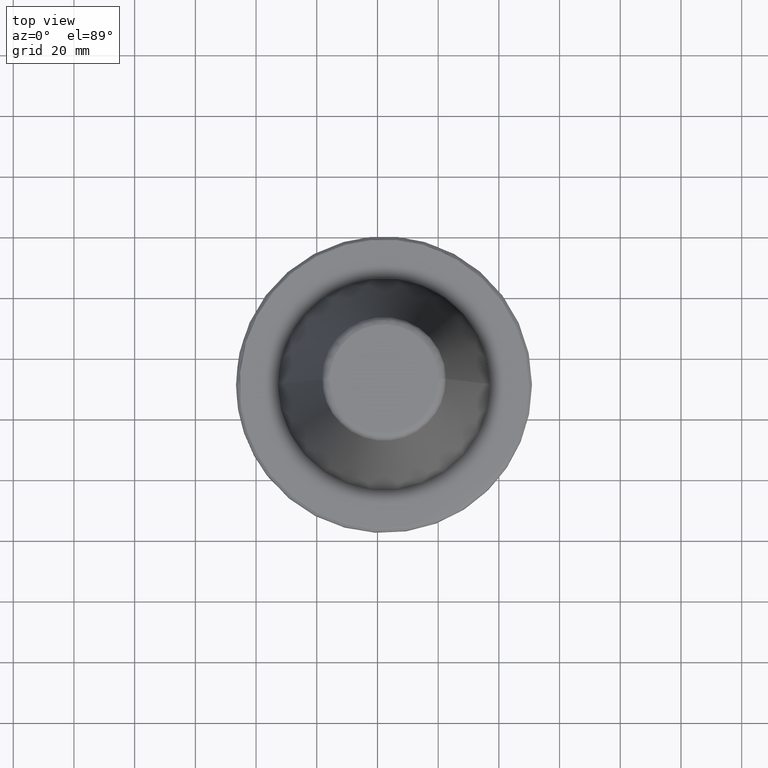
[diagram: clean part render]
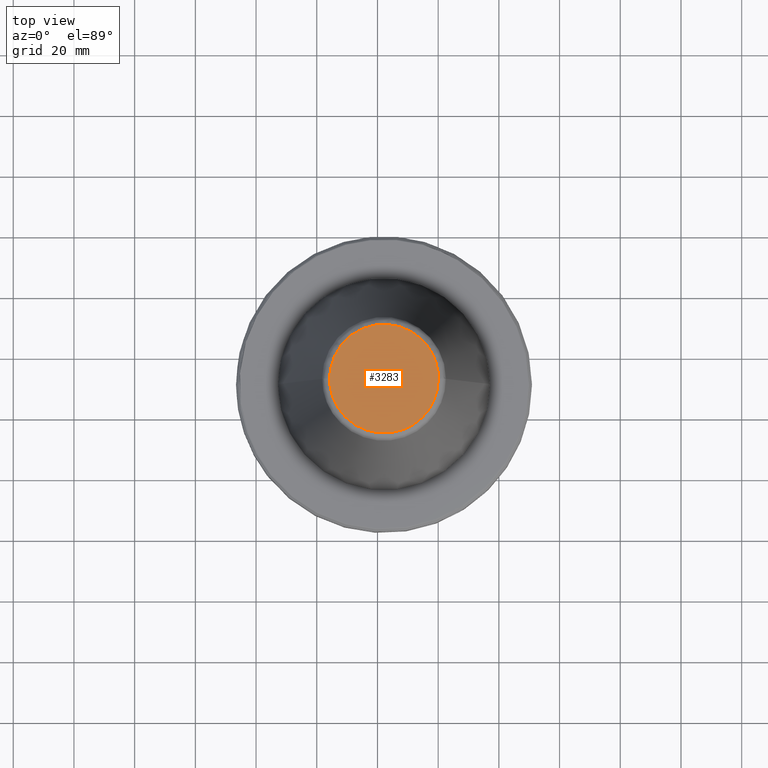
[diagram: same view with one face highlighted and labeled with its STEP entity id]
A machine part, top view. The second image highlights one B-rep face of the part: STEP entity #3283.
In plain terms, the highlighted planar face has unit normal (0, 0, 1).
Its self-contained STEP definition (entity closure, byte-faithful):
#28 = CARTESIAN_POINT ( 'NONE',  ( 104.0133589179459900, 171.9512151418019800, 325.5502788091370700 ) ) ;
#46 = DIRECTION ( 'NONE',  ( 1.000000000000000000, 0.0000000000000000000, -0.0000000000000000000 ) ) ;
#390 = CARTESIAN_POINT ( 'NONE',  ( 134.8274967219723000, 177.4162020947758300, 325.5502788091370700 ) ) ;
#402 =( BOUNDED_CURVE ( )  B_SPLINE_CURVE ( 3, ( #3173, #2804, #3352, #1025 ),
 .UNSPECIFIED., .F., .F. ) 
 B_SPLINE_CURVE_WITH_KNOTS ( ( 4, 4 ),
 ( 0.0000000000000000000, 1.000000000000000000 ),
 .UNSPECIFIED. ) 
 CURVE ( )  GEOMETRIC_REPRESENTATION_ITEM ( )  RATIONAL_B_SPLINE_CURVE ( ( 0.9999999999625013300, 0.3333333333208333700, 0.3333333333208333700, 0.9999999999625013300 ) ) 
 REPRESENTATION_ITEM ( '' )  );
#483 = CARTESIAN_POINT ( 'NONE',  ( 134.8274967219723000, 177.4162020947758300, 325.5502788091370700 ) ) ;
#774 = CARTESIAN_POINT ( 'NONE',  ( 140.0773727681978200, 185.7415828767707900, 325.5502788091371800 ) ) ;
#797 = CARTESIAN_POINT ( 'NONE',  ( 105.7661280275086300, 181.1285561191125500, 325.5502788091370100 ) ) ;
#869 = ORIENTED_EDGE ( 'NONE', *, *, #2988, .F. ) ;
#920 = AXIS2_PLACEMENT_3D ( 'NONE', #3849, #1528, #4255 ) ;
#1025 = CARTESIAN_POINT ( 'NONE',  ( 140.0773727666695300, 190.0907862128019900, 325.5502788091370700 ) ) ;
#1176 = CARTESIAN_POINT ( 'NONE',  ( 104.2284524412224400, 190.0907862128019900, 325.5502788091370700 ) ) ;
#1371 = ORIENTED_EDGE ( 'NONE', *, *, #4897, .T. ) ;
#1502 = VERTEX_POINT ( 'NONE', #483 ) ;
#1528 = DIRECTION ( 'NONE',  ( -0.0000000000000000000, -0.0000000000000000000, 1.000000000000000000 ) ) ;
#1729 = ORIENTED_EDGE ( 'NONE', *, *, #3341, .F. ) ;
#1731 = CIRCLE ( 'NONE', #920, 17.92456875715133100 ) ;
#1928 = CARTESIAN_POINT ( 'NONE',  ( 140.0773727666695300, 190.0907862128019900, 325.5502788091370700 ) ) ;
#2233 =( BOUNDED_CURVE ( )  B_SPLINE_CURVE ( 3, ( #3117, #797, #3511, #1176 ),
 .UNSPECIFIED., .F., .F. ) 
 B_SPLINE_CURVE_WITH_KNOTS ( ( 4, 4 ),
 ( 0.7071067808758579900, 1.000000000000000000 ),
 .UNSPECIFIED. ) 
 CURVE ( )  GEOMETRIC_REPRESENTATION_ITEM ( )  RATIONAL_B_SPLINE_CURVE ( ( 0.5857864373475535300, 0.6666666663487449400, 0.8047378538870608700, 0.9999999999625013300 ) ) 
 REPRESENTATION_ITEM ( '' )  );
#2257 = CARTESIAN_POINT ( 'NONE',  ( 109.4783284859197700, 177.4162020947758000, 325.5502788079578000 ) ) ;
#2389 = DIRECTION ( 'NONE',  ( 0.0000000000000000000, 0.0000000000000000000, 1.000000000000000000 ) ) ;
#2426 = ORIENTED_EDGE ( 'NONE', *, *, #4123, .F. ) ;
#2610 = VERTEX_POINT ( 'NONE', #3358 ) ;
#2650 = CARTESIAN_POINT ( 'NONE',  ( 140.0773727666695300, 190.0907862128019900, 325.5502788091370700 ) ) ;
#2729 = CARTESIAN_POINT ( 'NONE',  ( 138.5396971804360900, 181.1285561192706000, 325.5502788091370700 ) ) ;
#2804 = CARTESIAN_POINT ( 'NONE',  ( 104.2284524396943200, 225.9397065403054800, 325.5502788091373000 ) ) ;
#2813 =( BOUNDED_CURVE ( )  B_SPLINE_CURVE ( 3, ( #1928, #774, #2729, #390 ),
 .UNSPECIFIED., .F., .F. ) 
 B_SPLINE_CURVE_WITH_KNOTS ( ( 4, 4 ),
 ( 0.0000000000000000000, 0.2928932191199857800 ),
 .UNSPECIFIED. ) 
 CURVE ( )  GEOMETRIC_REPRESENTATION_ITEM ( )  RATIONAL_B_SPLINE_CURVE ( ( 0.9999999999625013300, 0.8047378538898316600, 0.6666666663526634700, 0.5857864373509966700 ) ) 
 REPRESENTATION_ITEM ( '' )  );
#2988 = EDGE_CURVE ( 'NONE', #3685, #1502, #2813, .T. ) ;
#3117 = CARTESIAN_POINT ( 'NONE',  ( 109.4783284859197600, 177.4162020947758000, 325.5502788079578000 ) ) ;
#3173 = CARTESIAN_POINT ( 'NONE',  ( 104.2284524412224400, 190.0907862128019900, 325.5502788091370700 ) ) ;
#3283 = ADVANCED_FACE ( 'NONE', ( #4855 ), #3910, .T. ) ;
#3341 = EDGE_CURVE ( 'NONE', #2610, #3685, #402, .T. ) ;
#3352 = CARTESIAN_POINT ( 'NONE',  ( 140.0773727681977600, 225.9397065403054800, 325.5502788091373000 ) ) ;
#3358 = CARTESIAN_POINT ( 'NONE',  ( 104.2284524412224400, 190.0907862128019900, 325.5502788091370700 ) ) ;
#3511 = CARTESIAN_POINT ( 'NONE',  ( 104.2284524396942400, 185.7415828766940800, 325.5502788091370100 ) ) ;
#3543 = EDGE_LOOP ( 'NONE', ( #2426, #1371, #869, #1729 ) ) ;
#3685 = VERTEX_POINT ( 'NONE', #2650 ) ;
#3849 = CARTESIAN_POINT ( 'NONE',  ( 122.1529126039459900, 190.0907862128020700, 325.5502788079578000 ) ) ;
#3910 = PLANE ( 'NONE',  #4458 ) ;
#4048 = VERTEX_POINT ( 'NONE', #2257 ) ;
#4123 = EDGE_CURVE ( 'NONE', #4048, #2610, #2233, .T. ) ;
#4255 = DIRECTION ( 'NONE',  ( 1.000000000000000000, 0.0000000000000000000, 0.0000000000000000000 ) ) ;
#4458 = AXIS2_PLACEMENT_3D ( 'NONE', #28, #2389, #46 ) ;
#4855 = FACE_OUTER_BOUND ( 'NONE', #3543, .T. ) ;
#4897 = EDGE_CURVE ( 'NONE', #4048, #1502, #1731, .T. ) ;